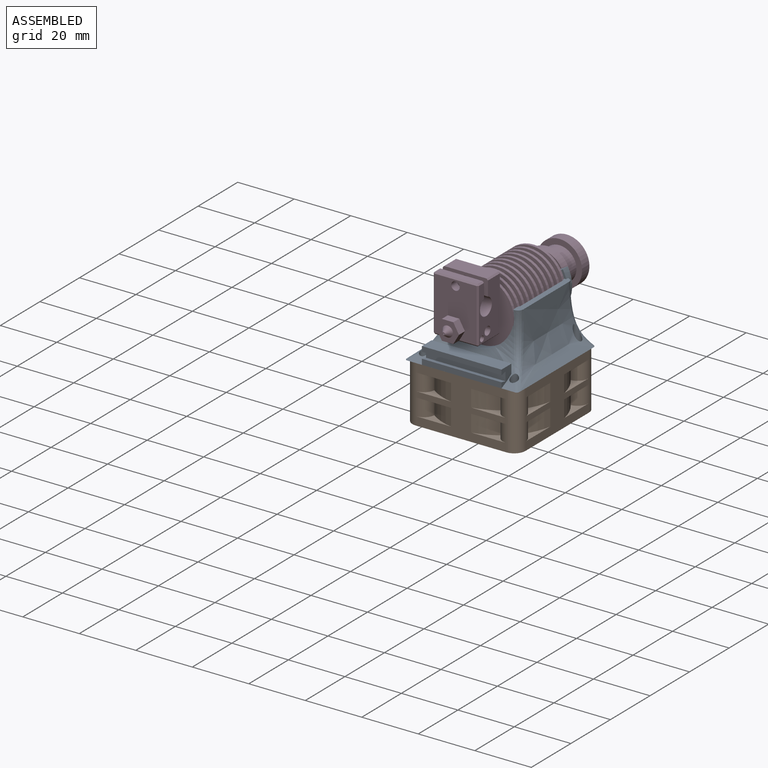
[diagram: assembled view]
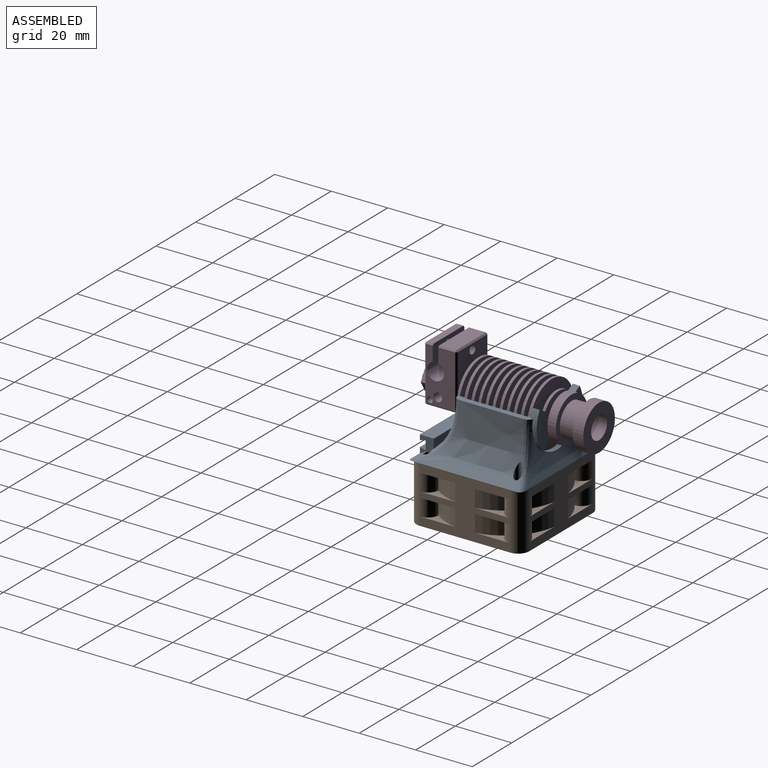
[diagram: assembled view, second angle]
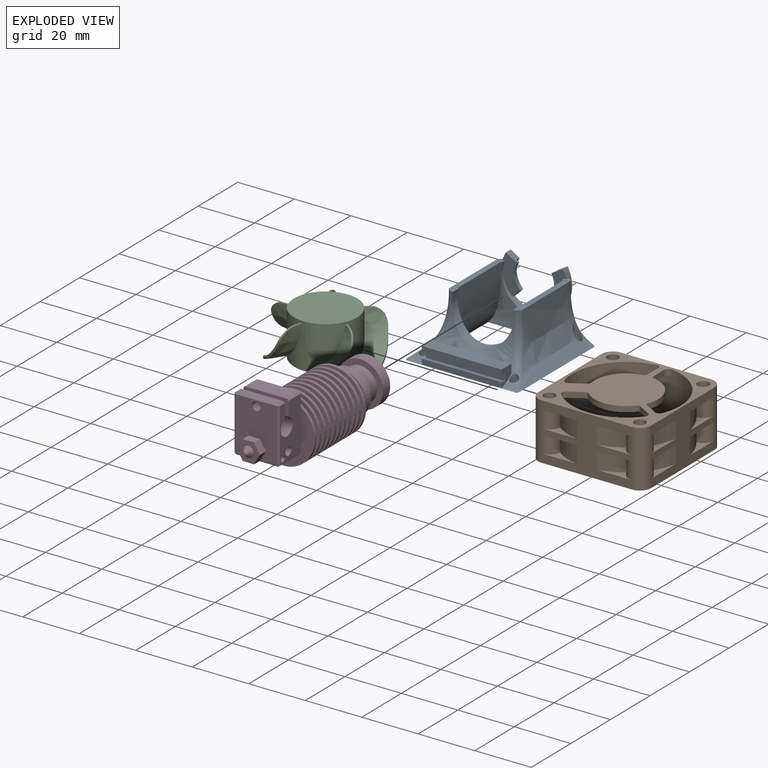
[diagram: exploded view]
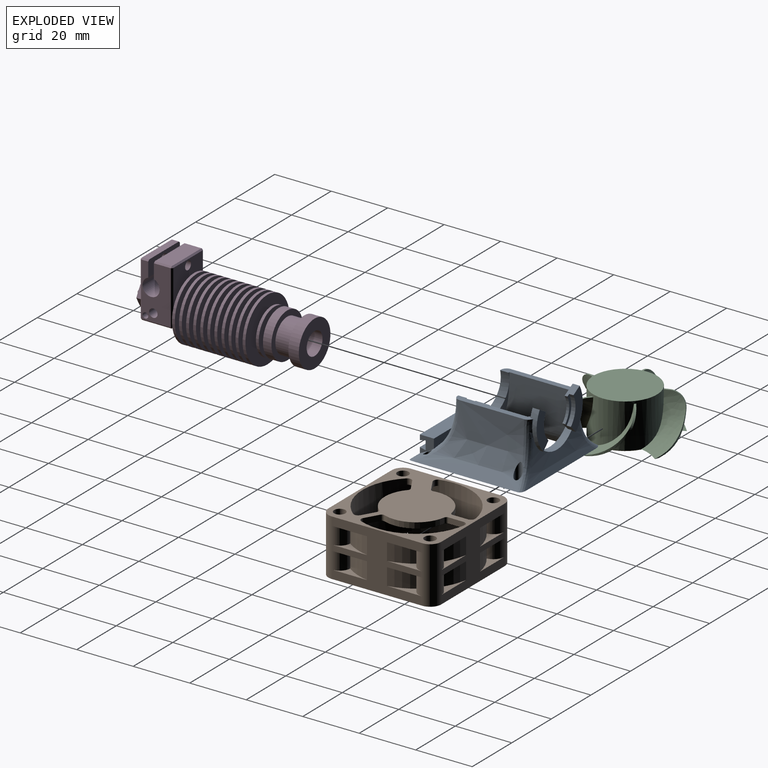
[diagram: exploded view, second angle]
ASSEMBLY  parts=4 mates=2
PART A: 46 faces, bbox 42.1x41.9x24.9 mm
  f0: plane 28.17x1.8mm, normal (0,-1,0), area 50.7mm2, adj f1,f41,f42,f43
  f1: plane 6.15x5.14mm, normal (-1,0,0), area 18.1mm2, adj f0,f2,f39,f40,f42,f43,f44,f45
  f2: bspline ~40x20mm, area 230.7mm2, adj f1,f6,f7,f11,f14,f31,f33,f35
  f3: bspline ~40x20mm, area 581.5mm2, adj f7,f11,f34,f35,f38
  f4: bspline ~40x20mm, area 581.8mm2, adj f6,f11,f32,f36,f37
  f5: cylinder r=11mm len=22mm, axis (0,-1,0), area 62.6mm2, adj f6,f7,f8,f9,f15,f21,f26,f30
  f6: plane 27.06x2.49mm, normal (0,0,1), area 53.7mm2, adj f2,f4,f5,f9,f10,f13,f14,f15
  f7: plane 27.06x2.49mm, normal (0,0,1), area 53.7mm2, adj f2,f3,f5,f9,f10,f12,f14,f25
  f8: bspline ~40x20mm, area 242.8mm2, adj f5,f11,f18,f21,f25,f30,f37,f38
  f9: bspline ~30x20mm, area 220.2mm2, adj f5,f6,f7,f11,f12,f13
  f10: bspline ~30x20mm, area 309.7mm2, adj f6,f7,f11,f12,f13,f14
  f11: plane 40.83x40.83mm, normal (0,0,-1), area 673.5mm2, adj f2,f3,f4,f8,f9,f10,f12,f13
  f12: bspline ~31x20mm, area 496.7mm2, adj f7,f9,f10,f11
  f13: bspline ~31x20mm, area 496.7mm2, adj f6,f9,f10,f11
  f14: cylinder r=11mm len=22mm, axis (0,-1,0), area 134.4mm2, adj f2,f6,f7,f10
  f15: plane 13.61x6.33mm, normal (0,-1,0), area 49.1mm2, adj f5,f6,f18,f19,f21,f22
  f16: cylinder r=8mm len=9.66mm, axis (0,1,0), area 15.7mm2, adj f17,f20,f21,f22
  f17: plane 14.09x6.01mm, normal (0,1,0), area 47.3mm2, adj f16,f18,f21,f22
  f18: cylinder r=11.67mm len=14.09mm, axis (0,1,0), area 24.7mm2, adj f6,f8,f15,f17,f21,f22,f37
  f19: cylinder r=7mm len=8.45mm, axis (0,1,0), area 9.2mm2, adj f15,f20,f21,f22
  f20: plane 9.66x3.05mm, normal (0,1,0), area 9.8mm2, adj f16,f19,f21,f22
  f21: plane 3.31x3.31mm, normal (0.71,0,-0.71), area 9.3mm2, adj f5,f8,f15,f16,f17,f18,f19,f20
  f22: plane 4.05x2.5mm, normal (0.5,0,0.87), area 10.2mm2, adj f15,f16,f17,f18,f19,f20
  f23: cylinder r=8mm len=9.66mm, axis (0,1,0), area 15.7mm2, adj f24,f28,f29,f30
  f24: plane 14.09x6.01mm, normal (0,1,0), area 47.3mm2, adj f23,f25,f29,f30
  f25: cylinder r=11.67mm len=14.09mm, axis (0,1,0), area 24.7mm2, adj f7,f8,f24,f26,f29,f30,f38
  f26: plane 13.61x6.33mm, normal (0,-1,0), area 49.1mm2, adj f5,f7,f25,f27,f29,f30
  f27: cylinder r=7mm len=8.45mm, axis (0,1,0), area 9.2mm2, adj f26,f28,f29,f30
  f28: plane 9.66x3.05mm, normal (0,1,0), area 9.8mm2, adj f23,f27,f29,f30
  f29: plane 4.05x2.5mm, normal (-0.5,0,0.87), area 10.2mm2, adj f23,f24,f25,f26,f27,f28
  f30: plane 3.31x3.31mm, normal (-0.71,0,-0.71), area 9.3mm2, adj f5,f8,f23,f24,f25,f26,f27,f28
  f31: cylinder r=1.4mm len=2.95mm, axis (0,0,-1), area 17.4mm2, adj f2,f11,f36
  f32: cylinder r=1.4mm len=6.59mm, axis (0,0,-1), area 36.9mm2, adj f4,f11,f37
  f33: cylinder r=1.4mm len=2.95mm, axis (0,0,-1), area 18.5mm2, adj f2,f11,f35
  f34: cylinder r=1.4mm len=6.9mm, axis (0,0,-1), area 37.3mm2, adj f3,f11,f38
  f35: bspline ~21.36x13.55mm, area 64.8mm2, adj f2,f3,f7,f11,f33
  f36: bspline ~21.36x13.55mm, area 64.9mm2, adj f2,f4,f6,f11,f31
  f37: bspline ~22.57x9.45mm, area 65.3mm2, adj f4,f6,f8,f11,f18,f32
  f38: bspline ~22.57x9.45mm, area 65.3mm2, adj f3,f7,f8,f11,f25,f34
  f39: plane 28.17x3.25mm, normal (0,1,0), area 91.6mm2, adj f1,f2,f41,f42
  f40: plane 28.17x1.95mm, normal (0,-1,0), area 54.9mm2, adj f1,f11,f41,f45
  f41: plane 6.15x5.15mm, normal (1,0,0), area 18.1mm2, adj f0,f2,f39,f40,f42,f43,f44,f45
  f42: plane 28.17x4.99mm, normal (0,0,1), area 140.6mm2, adj f0,f1,f39,f41
  f43: plane 28.17x2.05mm, normal (0,0.21,-0.98), area 59.1mm2, adj f0,f1,f41,f44
  f44: plane 28.17x3.15mm, normal (0,-1,0), area 88.7mm2, adj f1,f41,f43,f45
  f45: plane 28.17x2.05mm, normal (0,0.21,0.98), area 59.1mm2, adj f1,f40,f41,f44
PART B: 98 faces, bbox 40x40x20 mm
  f0: cylinder r=1mm len=2mm, axis (0,0,1), area 2.8mm2, adj f1,f4,f74,f76
  f1: plane 4.68x2.7mm, normal (0.5,0.87,0), area 10.8mm2, adj f0,f18,f74,f76
  f2: plane 5.41x2mm, normal (1,0,0), area 10.8mm2, adj f3,f73,f74,f76
  f3: cylinder r=1mm len=2mm, axis (0,0,1), area 2.8mm2, adj f2,f4,f74,f76
  f4: cylinder r=11.25mm len=15.05mm, axis (0,0,1), area 39.5mm2, adj f0,f3,f74,f76
  f5: cylinder r=1mm len=2mm, axis (0,0,1), area 2.5mm2, adj f6,f9,f74,f76
  f6: plane 4.72x2.78mm, normal (0.51,-0.86,0), area 11mm2, adj f5,f16,f74,f76
  f7: plane 4.68x2.7mm, normal (-0.5,-0.87,0), area 10.8mm2, adj f8,f17,f74,f76
  f8: cylinder r=1mm len=2mm, axis (0,0,1), area 2.8mm2, adj f7,f9,f74,f76
  f9: cylinder r=11.25mm len=16.19mm, axis (0,0,1), area 36.3mm2, adj f5,f8,f74,f76
  f10: plane 4.77x2.81mm, normal (-0.51,0.86,0), area 11.1mm2, adj f11,f15,f74,f76
  f11: cylinder r=1mm len=2mm, axis (0,0,1), area 2.4mm2, adj f10,f12,f74,f76
  f12: cylinder r=11.25mm len=13.04mm, axis (0,0,1), area 35.6mm2, adj f11,f13,f74,f76
  f13: cylinder r=1mm len=2mm, axis (0,0,1), area 2.8mm2, adj f12,f14,f74,f76
  f14: plane 5.4x2mm, normal (-1,0,0), area 10.8mm2, adj f13,f74,f75,f76
  f15: cylinder r=1.5mm len=2.21mm, axis (0,0,-1), area 5.5mm2, adj f10,f74,f76,f91
  f16: cylinder r=1.5mm len=2.33mm, axis (0,0,-1), area 5.4mm2, adj f6,f74,f76,f91
  f17: cylinder r=1.5mm len=2.23mm, axis (0,0,-1), area 5.2mm2, adj f7,f74,f76,f91
  f18: cylinder r=1.5mm len=2.14mm, axis (0,0,-1), area 5.1mm2, adj f1,f74,f76,f91
  f19: cylinder r=2mm len=17.5mm, axis (0,0,-1), area 219.9mm2, adj f76,f77
  f20: cylinder r=2mm len=17.5mm, axis (0,0,-1), area 219.9mm2, adj f76,f78
  f21: cylinder r=4mm len=6mm, axis (0,0,-1), area 35.5mm2, adj f26,f27,f28,f81
  f22: cylinder r=4mm len=6mm, axis (0,0,-1), area 35.5mm2, adj f23,f24,f25,f81
  f23: plane 12.47x3.63mm, normal (0,0,-1), area 15.5mm2, adj f22,f24,f82
  f24: cylinder r=20.31mm len=8.49mm, axis (0,0,-1), area 55.9mm2, adj f22,f23,f25,f82
  f25: plane 12.47x3.63mm, normal (0,0,1), area 15.5mm2, adj f22,f24,f82
  f26: plane 12.47x3.63mm, normal (0,0,-1), area 15.5mm2, adj f21,f27,f82
  f27: cylinder r=20.31mm len=8.49mm, axis (0,0,-1), area 55.9mm2, adj f21,f26,f28,f82
  f28: plane 12.47x3.63mm, normal (0,0,1), area 15.5mm2, adj f21,f27,f82
  f29: plane 12.47x3.63mm, normal (0,0,1), area 15.5mm2, adj f30,f35,f82
  f30: cylinder r=20.31mm len=8.49mm, axis (0,0,-1), area 55.9mm2, adj f29,f31,f35,f82
  f31: plane 12.47x3.63mm, normal (0,0,-1), area 15.5mm2, adj f30,f35,f82
  f32: plane 12.47x3.63mm, normal (0,0,1), area 15.5mm2, adj f33,f36,f82
  f33: cylinder r=20.31mm len=8.49mm, axis (0,0,-1), area 55.9mm2, adj f32,f34,f36,f82
  f34: plane 12.47x3.63mm, normal (0,0,-1), area 15.5mm2, adj f33,f36,f82
  f35: cylinder r=4mm len=6mm, axis (0,0,-1), area 35.5mm2, adj f29,f30,f31,f83
  f36: cylinder r=4mm len=6mm, axis (0,0,-1), area 35.5mm2, adj f32,f33,f34,f83
  f37: plane 12.47x3.63mm, normal (0,0,-1), area 15.5mm2, adj f38,f83,f84
  f38: cylinder r=20.31mm len=8.49mm, axis (0,0,-1), area 55.9mm2, adj f37,f39,f83,f84
  f39: plane 12.47x3.63mm, normal (0,0,1), area 15.5mm2, adj f38,f83,f84
  f40: plane 12.47x3.63mm, normal (0,0,-1), area 15.5mm2, adj f41,f83,f84
  f41: cylinder r=20.31mm len=8.49mm, axis (0,0,-1), area 55.9mm2, adj f40,f42,f83,f84
  f42: plane 12.47x3.63mm, normal (0,0,1), area 15.5mm2, adj f41,f83,f84
  f43: plane 12.47x3.63mm, normal (0,0,-1), area 15.5mm2, adj f44,f84,f85
  f44: cylinder r=20.31mm len=8.49mm, axis (0,0,-1), area 55.9mm2, adj f43,f45,f84,f85
  f45: plane 12.47x3.63mm, normal (0,0,1), area 15.5mm2, adj f44,f84,f85
  f46: plane 12.47x3.63mm, normal (0,0,-1), area 15.5mm2, adj f47,f84,f85
  f47: cylinder r=20.31mm len=8.49mm, axis (0,0,-1), area 55.9mm2, adj f46,f48,f84,f85
  f48: plane 12.47x3.63mm, normal (0,0,1), area 15.5mm2, adj f47,f84,f85
  f49: plane 12.47x3.63mm, normal (0,0,-1), area 15.5mm2, adj f50,f85,f86
  f50: cylinder r=20.31mm len=8.49mm, axis (0,0,-1), area 55.9mm2, adj f49,f51,f85,f86
  f51: plane 12.47x3.63mm, normal (0,0,1), area 15.5mm2, adj f50,f85,f86
  f52: plane 12.47x3.63mm, normal (0,0,-1), area 15.5mm2, adj f53,f85,f86
  f53: cylinder r=20.31mm len=8.49mm, axis (0,0,-1), area 55.9mm2, adj f52,f54,f85,f86
  f54: plane 12.47x3.63mm, normal (0,0,1), area 15.5mm2, adj f53,f85,f86
  f55: plane 12.47x3.63mm, normal (0,0,-1), area 15.5mm2, adj f56,f86,f87
  f56: cylinder r=20.31mm len=8.49mm, axis (0,0,-1), area 55.9mm2, adj f55,f57,f86,f87
  f57: plane 12.47x3.63mm, normal (0,0,1), area 15.5mm2, adj f56,f86,f87
  f58: plane 12.47x3.63mm, normal (0,0,-1), area 15.5mm2, adj f59,f86,f87
  f59: cylinder r=20.31mm len=8.49mm, axis (0,0,-1), area 55.9mm2, adj f58,f60,f86,f87
  f60: plane 12.47x3.63mm, normal (0,0,1), area 15.5mm2, adj f59,f86,f87
  f61: plane 12.47x3.63mm, normal (0,0,-1), area 15.5mm2, adj f62,f87,f88
  f62: cylinder r=20.31mm len=8.49mm, axis (0,0,-1), area 55.9mm2, adj f61,f63,f87,f88
  f63: plane 12.47x3.63mm, normal (0,0,1), area 15.5mm2, adj f62,f87,f88
  f64: plane 12.47x3.63mm, normal (0,0,-1), area 15.5mm2, adj f65,f87,f88
  f65: cylinder r=20.31mm len=8.49mm, axis (0,0,-1), area 55.9mm2, adj f64,f66,f87,f88
  f66: plane 12.47x3.63mm, normal (0,0,1), area 15.5mm2, adj f65,f87,f88
  f67: plane 12.47x3.63mm, normal (0,0,1), area 15.5mm2, adj f68,f81,f88
  f68: cylinder r=20.31mm len=8.49mm, axis (0,0,-1), area 55.9mm2, adj f67,f69,f81,f88
  f69: plane 12.47x3.63mm, normal (0,0,-1), area 15.5mm2, adj f68,f81,f88
  f70: plane 12.47x3.63mm, normal (0,0,1), area 15.5mm2, adj f71,f81,f88
  f71: cylinder r=20.31mm len=8.49mm, axis (0,0,-1), area 55.9mm2, adj f70,f72,f81,f88
  f72: plane 12.47x3.63mm, normal (0,0,-1), area 15.5mm2, adj f71,f81,f88
  f73: cylinder r=1.5mm len=2mm, axis (0,0,-1), area 5.2mm2, adj f2,f74,f76,f91
  f74: plane 36.32x32.47mm, normal (0,0,-1), area 483.2mm2, adj f0,f1,f2,f3,f4,f5,f6,f7
  f75: cylinder r=1.5mm len=2mm, axis (0,0,-1), area 5.1mm2, adj f14,f74,f76,f91
  f76: plane 40x40mm, normal (0,0,1), area 865.2mm2, adj f0,f1,f2,f3,f4,f5,f6,f7
  f77: plane 7x7mm, normal (0,0,-1), area 25.8mm2, adj f19,f90,f96
  f78: plane 7x7mm, normal (0,0,-1), area 25.8mm2, adj f20,f89,f96
  f79: cylinder r=2mm len=17.5mm, axis (0,0,-1), area 219.9mm2, adj f76,f92
  f80: cylinder r=2mm len=17.5mm, axis (0,0,-1), area 219.9mm2, adj f76,f94
  f81: cylinder r=4mm len=20mm, axis (0,0,-1), area 196.6mm2, adj f21,f22,f67,f68,f69,f70,f71,f72
  f82: plane 32x20mm, normal (-1,0,0), area 340.6mm2, adj f23,f24,f25,f26,f27,f28,f29,f30
  f83: cylinder r=4mm len=20mm, axis (0,0,-1), area 196.6mm2, adj f35,f36,f37,f38,f39,f40,f41,f42
  f84: plane 32x20mm, normal (0,1,0), area 340.6mm2, adj f37,f38,f39,f40,f41,f42,f43,f44
  f85: cylinder r=4mm len=20mm, axis (0,0,-1), area 267.5mm2, adj f43,f44,f45,f46,f47,f48,f49,f50
  f86: plane 32x20mm, normal (1,0,0), area 340.6mm2, adj f49,f50,f51,f52,f53,f54,f55,f56
  f87: cylinder r=4mm len=20mm, axis (0,0,-1), area 267.5mm2, adj f55,f56,f57,f58,f59,f60,f61,f62
  f88: plane 32x20mm, normal (0,-1,0), area 340.6mm2, adj f61,f62,f63,f64,f65,f66,f67,f68
  f89: cylinder r=3.5mm len=7mm, axis (0,0,-1), area 48.5mm2, adj f78,f95,f96
  f90: cylinder r=3.5mm len=7mm, axis (0,0,-1), area 48.5mm2, adj f77,f95,f96
  f91: cylinder r=19.17mm len=38.33mm, axis (0,0,-1), area 2005.3mm2, adj f15,f16,f17,f18,f73,f74,f75,f76
  f92: plane 7x7mm, normal (0,0,-1), area 25.8mm2, adj f79,f93,f96
  f93: cylinder r=3.5mm len=7mm, axis (0,0,-1), area 48.5mm2, adj f92,f95,f96
  f94: plane 7x7mm, normal (0,0,-1), area 25.8mm2, adj f80,f96,f97
  f95: plane 40x40mm, normal (0,0,-1), area 231mm2, adj f81,f82,f83,f84,f85,f86,f87,f88
  f96: cone r=0mm half-angle=8deg, axis (0,0,-1), area 343.4mm2, adj f77,f78,f89,f90,f91,f92,f93,f94
  f97: cylinder r=3.5mm len=7mm, axis (0,0,-1), area 48.5mm2, adj f94,f95,f96
PART C: 41 faces, bbox 41.1x39.8x16.5 mm
  f0: bspline ~5.86x5.06mm, area 4.7mm2, adj f7,f10,f11,f12
  f1: bspline ~5.63x5.31mm, area 4.7mm2, adj f5,f13,f14,f15
  f2: bspline ~5.91x5.06mm, area 4.7mm2, adj f18,f20,f21,f22
  f3: bspline ~5.77x5.53mm, area 4.7mm2, adj f16,f23,f24,f25
  f4: bspline ~5.48x5.06mm, area 4.7mm2, adj f9,f27,f28,f30
  f5: cylinder r=18.17mm len=12.07mm, axis (0,0,-1), area 13.5mm2, adj f1,f6,f13,f15,f31
  f6: bspline ~6.43x4.12mm, area 1.6mm2, adj f5,f15,f31,f40
  f7: cylinder r=18.17mm len=12.7mm, axis (0,0,-1), area 13.5mm2, adj f0,f8,f10,f12,f32
  f8: bspline ~7.26x2.26mm, area 1.6mm2, adj f7,f12,f32,f40
  f9: bspline ~2.33x0.69mm, area 1.2mm2, adj f4,f27,f30,f36
  f10: bspline ~16.16x16mm, area 140.2mm2, adj f0,f7,f11,f32,f36
  f11: bspline ~2.25x1.68mm, area 1.2mm2, adj f0,f10,f12,f36
  f12: bspline ~16.97x16.83mm, area 146.6mm2, adj f0,f7,f8,f11,f36
  f13: bspline ~17.24x16.16mm, area 140.2mm2, adj f1,f5,f14,f31,f36
  f14: bspline ~2.39x1.23mm, area 1.2mm2, adj f1,f13,f15,f36
  f15: bspline ~18.58x16.31mm, area 146.6mm2, adj f1,f5,f6,f14,f36
  f16: cylinder r=18.17mm len=14.72mm, axis (0,0,-1), area 13.5mm2, adj f3,f17,f23,f25,f33
  f17: bspline ~7.37x1.33mm, area 1.6mm2, adj f16,f25,f33,f40
  f18: cylinder r=18.17mm len=15.31mm, axis (0,0,-1), area 13.5mm2, adj f2,f19,f20,f22,f35
  f19: bspline ~6.68x3mm, area 1.6mm2, adj f18,f22,f35,f40
  f20: bspline ~17.62x16.16mm, area 140.2mm2, adj f2,f18,f21,f35,f36
  f21: bspline ~2.08x1.35mm, area 1.2mm2, adj f2,f20,f22,f36
  f22: bspline ~19.66x16.31mm, area 146.6mm2, adj f2,f18,f19,f21,f36
  f23: bspline ~16.72x16.16mm, area 140.6mm2, adj f3,f16,f24,f33,f34,f36
  f24: bspline ~1.98x1.91mm, area 1.2mm2, adj f3,f23,f25,f36
  f25: bspline ~18.65x16.31mm, area 146.8mm2, adj f3,f16,f17,f24,f36
  f26: plane 22.5x22.5mm, normal (0,0,1), area 397.6mm2, adj f36
  f27: bspline ~18.74x16.31mm, area 146.2mm2, adj f4,f9,f28,f29,f36
  f28: cylinder r=18.17mm len=14.4mm, axis (0,0,-1), area 13.5mm2, adj f4,f27,f29,f30,f37
  f29: bspline ~5.7x4.98mm, area 1.6mm2, adj f27,f28,f37,f40
  f30: bspline ~16.94x16.16mm, area 143.2mm2, adj f4,f9,f28,f36,f37,f38
  f31: bspline ~7.36x5.37mm, area 11.9mm2, adj f5,f6,f13,f36,f40
  f32: bspline ~7.9x3.53mm, area 11.9mm2, adj f7,f8,f10,f36,f40
  f33: bspline ~8.03x2.34mm, area 11.9mm2, adj f16,f17,f23,f34,f40
  f34: cylinder r=11.25mm len=1.97mm, axis (0,0,1), area 0.4mm2, adj f23,f33,f36,f40
  f35: bspline ~7.54x4.34mm, area 11.9mm2, adj f18,f19,f20,f36,f40
  f36: cylinder r=11.25mm len=22.5mm, axis (0,0,1), area 1010.6mm2, adj f9,f10,f11,f12,f13,f14,f15,f20
  f37: bspline ~6.79x6.15mm, area 11.9mm2, adj f28,f29,f30,f38,f40
  f38: cylinder r=11.25mm len=8.11mm, axis (0,0,1), area 22.8mm2, adj f30,f36,f37,f40
  f39: plane 21.9x21.9mm, normal (0,0,-1), area 376.7mm2, adj f40
  f40: cone r=0mm half-angle=45deg, axis (0,0,1), area 29.4mm2, adj f6,f8,f17,f19,f29,f31,f32,f33
PART D: 111 faces, bbox 26.7x62.3x22.3 mm
  f0: plane 0.5x0.5mm, normal (-0.58,0.58,-0.58), area 0.2mm2, adj f18,f20,f21
  f1: plane 0.5x0.5mm, normal (0.58,0.58,-0.58), area 0.2mm2, adj f4,f17,f20
  f2: plane 0.5x0.5mm, normal (-0.58,0.58,0.58), area 0.2mm2, adj f6,f18,f19
  f3: plane 0.5x0.5mm, normal (0.58,-0.58,-0.58), area 0.2mm2, adj f4,f9,f16
  f4: plane 10.5x0.5mm, normal (0.71,0,-0.71), area 7.4mm2, adj f1,f3,f27,f51
  f5: plane 0.5x0.5mm, normal (0.58,0.58,0.58), area 0.2mm2, adj f6,f11,f17
  f6: plane 19x0.5mm, normal (0,0.71,0.71), area 13.4mm2, adj f2,f5,f22,f25
  f7: plane 0.5x0.5mm, normal (-0.58,-0.58,-0.58), area 0.2mm2, adj f8,f9,f14
  f8: plane 2.5x0.5mm, normal (-0.71,0,-0.71), area 1.8mm2, adj f7,f50,f51,f52
  f9: plane 19x0.5mm, normal (0,-0.71,-0.71), area 13.4mm2, adj f3,f7,f26,f51
  f10: plane 0.5x0.5mm, normal (0.58,-0.58,0.58), area 0.2mm2, adj f11,f15,f16
  f11: plane 10.5x0.5mm, normal (0.71,0,0.71), area 7.4mm2, adj f5,f10,f22,f27
  f12: plane 0.5x0.5mm, normal (-0.58,-0.58,0.58), area 0.2mm2, adj f13,f14,f15
  f13: plane 2.5x0.5mm, normal (-0.71,0,0.71), area 1.8mm2, adj f12,f22,f50,f52
  f14: plane 15x0.5mm, normal (-0.71,-0.71,0), area 10.6mm2, adj f7,f12,f26,f52
  f15: plane 19x0.5mm, normal (0,-0.71,0.71), area 13.4mm2, adj f10,f12,f22,f26
  f16: plane 15x0.5mm, normal (0.71,-0.71,0), area 10.6mm2, adj f3,f10,f26,f27
  f17: plane 15x0.5mm, normal (0.71,0.71,0), area 10.6mm2, adj f1,f5,f25,f27
  f18: plane 15x0.5mm, normal (-0.71,0.71,0), area 10.6mm2, adj f0,f2,f23,f25
  f19: plane 6x0.5mm, normal (-0.71,0,0.71), area 4.2mm2, adj f2,f22,f23,f24
  f20: plane 19x0.5mm, normal (0,0.71,-0.71), area 13.4mm2, adj f0,f1,f25,f51
  f21: plane 6x0.5mm, normal (-0.71,0,-0.71), area 4.2mm2, adj f0,f23,f24,f51
  f22: plane 19x10.5mm, normal (0,0,1), area 150.5mm2, adj f6,f11,f13,f15,f19,f24,f43,f47
  f23: plane 15x6mm, normal (-1,0,0), area 90mm2, adj f18,f19,f21,f24
  f24: plane 16x5.65mm, normal (0,-1,0), area 83mm2, adj f19,f21,f22,f23,f42,f49,f51
  f25: plane 19x15mm, normal (0,1,0), area 271.8mm2, adj f6,f17,f18,f20,f42,f53
  f26: plane 19x15mm, normal (0,-1,0), area 258.3mm2, adj f9,f14,f15,f16,f40,f41
  f27: plane 15x10.5mm, normal (1,0,0), area 157.5mm2, adj f4,f11,f16,f17
  f28: cylinder r=0.2mm len=3mm, axis (0,1,0), area 3.8mm2, adj f29,f30
  f29: plane 0.4x0.4mm, normal (0,-1,0), area 0.1mm2, adj f28
  f30: plane 1x1mm, normal (0,-1,0), area 0.7mm2, adj f28,f31
  f31: cone r=1.9mm half-angle=35deg, axis (0,1,0), area 18.4mm2, adj f30,f39
  f32: plane 8.08x7mm, normal (0,1,0), area 22.8mm2, adj f33,f34,f35,f36,f37,f38,f40
  f33: plane 3.5x3mm, normal (-0.5,0,0.87), area 12.1mm2, adj f32,f34,f38,f39
  f34: plane 3.5x3mm, normal (0.5,0,0.87), area 12.1mm2, adj f32,f33,f35,f39
  f35: plane 4.04x3mm, normal (1,0,0), area 12.1mm2, adj f32,f34,f36,f39
  f36: plane 3.5x3mm, normal (0.5,0,-0.87), area 12.1mm2, adj f32,f35,f37,f39
  f37: plane 3.5x3mm, normal (-0.5,0,-0.87), area 12.1mm2, adj f32,f36,f38,f39
  f38: plane 4.04x3mm, normal (-1,0,0), area 12.1mm2, adj f32,f33,f37,f39
  f39: plane 8.08x7mm, normal (0,-1,0), area 31.1mm2, adj f31,f33,f34,f35,f36,f37,f38
  f40: cylinder r=2.5mm len=5mm, axis (0,-1,0), area 15.7mm2, adj f26,f32
  f41: cylinder r=1.5mm len=3mm, axis (0,-1,0), area 28.3mm2, adj f26,f50
  f42: cylinder r=1.5mm len=6.5mm, axis (0,-1,0), area 61.3mm2, adj f24,f25
  f43: cylinder r=1mm len=2mm, axis (0,0,-1), area 12.6mm2, adj f22,f44
  f44: plane 2x2mm, normal (0,0,1), area 1.3mm2, adj f43,f45
  f45: cylinder r=0.78mm len=2.45mm, axis (0,0,-1), area 11.9mm2, adj f44,f46
  f46: plane 1.55x1.55mm, normal (0,0,1), area 1.9mm2, adj f45
  f47: cylinder r=1.5mm len=3.45mm, axis (0,0,-1), area 32.5mm2, adj f22,f48
  f48: plane 3x3mm, normal (0,0,1), area 7.1mm2, adj f47
  f49: cylinder r=3.02mm len=16mm, axis (0,0,-1), area 271.5mm2, adj f22,f24,f50,f51
  f50: plane 16x5.65mm, normal (0,1,0), area 83mm2, adj f8,f13,f22,f41,f49,f51,f52
  f51: plane 19x10.5mm, normal (0,0,-1), area 160.7mm2, adj f4,f8,f9,f20,f21,f24,f49,f50
  f52: plane 15x2.5mm, normal (-1,0,0), area 37.5mm2, adj f8,f13,f14,f50
  f53: cylinder r=1.4mm len=2.8mm, axis (0,-1,0), area 18.5mm2, adj f25,f110
  f54: cylinder r=4mm len=8mm, axis (0,-1,0), area 163.4mm2, adj f55,f56
  f55: plane 8x8mm, normal (0,1,0), area 50.3mm2, adj f54
  f56: plane 16x16mm, normal (0,1,0), area 150.8mm2, adj f54,f57
  f57: cylinder r=8mm len=16mm, axis (0,-1,0), area 186mm2, adj f56,f58
  f58: plane 16x16mm, normal (0,-1,0), area 88mm2, adj f57,f59
  f59: cylinder r=6mm len=12mm, axis (0,-1,0), area 226.2mm2, adj f58,f60
  f60: plane 16x16mm, normal (0,1,0), area 88mm2, adj f59,f61
  f61: cylinder r=8mm len=16mm, axis (0,-1,0), area 150.8mm2, adj f60,f62
  f62: plane 16x16mm, normal (0,-1,0), area 137.4mm2, adj f61,f63
  f63: cylinder r=4.5mm len=9mm, axis (0,-1,0), area 42.4mm2, adj f62,f64
  f64: plane 16x16mm, normal (0,1,0), area 137.4mm2, adj f63,f65
  f65: cylinder r=8mm len=16mm, axis (0,-1,0), area 50.3mm2, adj f64,f66
  f66: plane 16x16mm, normal (0,-1,0), area 137.4mm2, adj f65,f67
  f67: cylinder r=4.5mm len=9mm, axis (0,-1,0), area 42.4mm2, adj f66,f68
  f68: plane 22.3x22.3mm, normal (0,1,0), area 327mm2, adj f67,f69
  f69: cylinder r=11.15mm len=22.3mm, axis (0,-1,0), area 70.1mm2, adj f68,f70
  f70: plane 22.3x22.3mm, normal (0,-1,0), area 319.7mm2, adj f69,f71
  f71: cylinder r=4.75mm len=9.5mm, axis (0,-1,0), area 44.8mm2, adj f70,f72
  f72: plane 22.3x22.3mm, normal (0,1,0), area 319.7mm2, adj f71,f73
  f73: cylinder r=11.15mm len=22.3mm, axis (0,-1,0), area 70.1mm2, adj f72,f74
  f74: plane 22.3x22.3mm, normal (0,-1,0), area 312mm2, adj f73,f75
  f75: cylinder r=5mm len=10mm, axis (0,-1,0), area 47.1mm2, adj f74,f76
  f76: plane 22.3x22.3mm, normal (0,1,0), area 312mm2, adj f75,f77
  f77: cylinder r=11.15mm len=22.3mm, axis (0,-1,0), area 70.1mm2, adj f76,f78
  f78: plane 22.3x22.3mm, normal (0,-1,0), area 304mm2, adj f77,f79
  f79: cylinder r=5.25mm len=10.5mm, axis (0,-1,0), area 49.5mm2, adj f78,f80
  f80: plane 22.3x22.3mm, normal (0,1,0), area 304mm2, adj f79,f81
  f81: cylinder r=11.15mm len=22.3mm, axis (0,-1,0), area 70.1mm2, adj f80,f82
  f82: plane 22.3x22.3mm, normal (0,-1,0), area 295.5mm2, adj f81,f83
  f83: cylinder r=5.5mm len=11mm, axis (0,-1,0), area 51.8mm2, adj f82,f84
  f84: plane 22.3x22.3mm, normal (0,1,0), area 295.5mm2, adj f83,f85
  f85: cylinder r=11.15mm len=22.3mm, axis (0,-1,0), area 70.1mm2, adj f84,f86
  f86: plane 22.3x22.3mm, normal (0,-1,0), area 286.7mm2, adj f85,f87
  f87: cylinder r=5.75mm len=11.5mm, axis (0,-1,0), area 54.2mm2, adj f86,f88
  f88: plane 22.3x22.3mm, normal (0,1,0), area 286.7mm2, adj f87,f89
  f89: cylinder r=11.15mm len=22.3mm, axis (0,-1,0), area 70.1mm2, adj f88,f90
  f90: plane 22.3x22.3mm, normal (0,-1,0), area 277.5mm2, adj f89,f91
  f91: cylinder r=6mm len=12mm, axis (0,-1,0), area 56.5mm2, adj f90,f92
  f92: plane 22.3x22.3mm, normal (0,1,0), area 277.5mm2, adj f91,f93
  f93: cylinder r=11.15mm len=22.3mm, axis (0,-1,0), area 70.1mm2, adj f92,f94
  f94: plane 22.3x22.3mm, normal (0,-1,0), area 267.9mm2, adj f93,f95
  f95: cylinder r=6.25mm len=12.5mm, axis (0,-1,0), area 58.9mm2, adj f94,f96
  f96: plane 22.3x22.3mm, normal (0,1,0), area 267.9mm2, adj f95,f97
  f97: cylinder r=11.15mm len=22.3mm, axis (0,-1,0), area 70.1mm2, adj f96,f98
  f98: plane 22.3x22.3mm, normal (0,-1,0), area 257.8mm2, adj f97,f99
  f99: cylinder r=6.5mm len=13mm, axis (0,-1,0), area 61.3mm2, adj f98,f100
  f100: plane 22.3x22.3mm, normal (0,1,0), area 257.8mm2, adj f99,f101
  f101: cylinder r=11.15mm len=22.3mm, axis (0,-1,0), area 70.1mm2, adj f100,f102
  f102: plane 22.3x22.3mm, normal (0,-1,0), area 247.4mm2, adj f101,f103
  f103: cylinder r=6.75mm len=13.5mm, axis (0,-1,0), area 63.6mm2, adj f102,f104
  f104: plane 22.3x22.3mm, normal (0,1,0), area 247.4mm2, adj f103,f105
  f105: cylinder r=11.15mm len=22.3mm, axis (0,-1,0), area 70.1mm2, adj f104,f106
  f106: plane 22.3x22.3mm, normal (0,-1,0), area 236.6mm2, adj f105,f107
  f107: cylinder r=7mm len=14mm, axis (0,-1,0), area 66mm2, adj f106,f108
  f108: plane 22.3x22.3mm, normal (0,1,0), area 236.6mm2, adj f107,f109
  f109: cylinder r=11.15mm len=22.3mm, axis (0,-1,0), area 70.1mm2, adj f108,f110
  f110: plane 22.3x22.3mm, normal (0,-1,0), area 384.4mm2, adj f53,f109
PLACE A rot(axis=(0,1,0),0deg) t=(-4.22,10.49,48.42)mm
PLACE B rot(axis=(0,1,0),0deg) t=(-4.22,10.49,28.42)mm
PLACE C rot(axis=(0,1,0),0deg) t=(-5.06,10.03,29.42)mm
PLACE D rot(axis=(0,1,0),90deg) t=(-4.22,22.59,65.42)mm
MATE fastened D.f53 <-> A.f5  axis (0,-1,0) through (-4.22,29.24,65.42)mm
MATE fastened C.f5 <-> B.f74  axis (0,0,1) through (-5.06,10.03,46.42)mm
